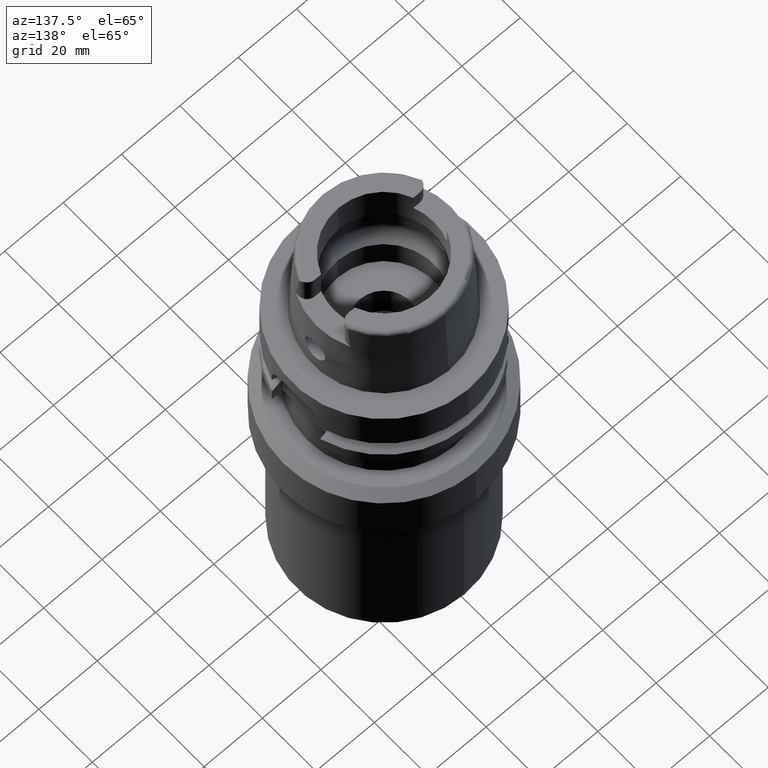
[diagram: clean part render]
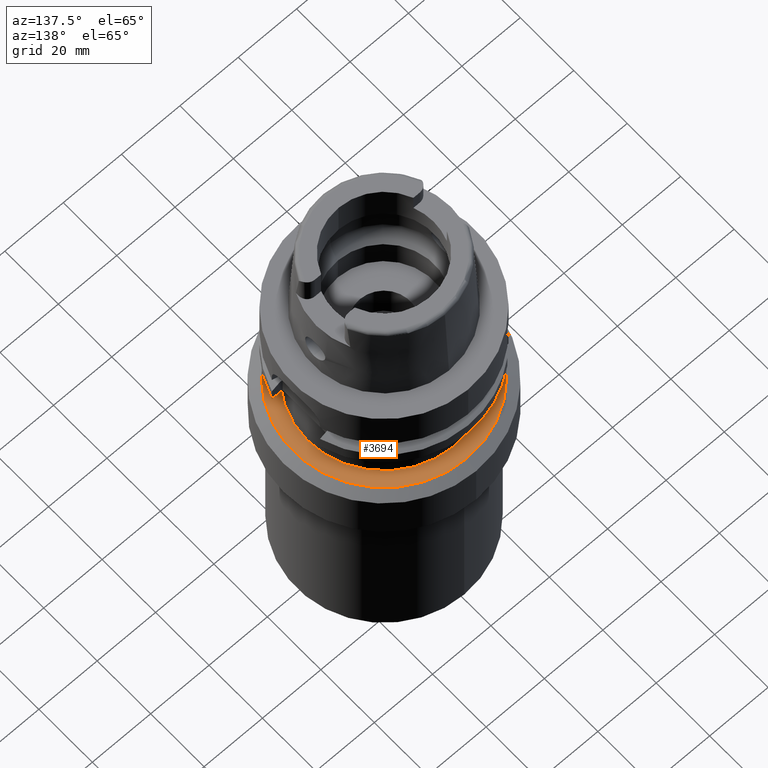
[diagram: same view with one face highlighted and labeled with its STEP entity id]
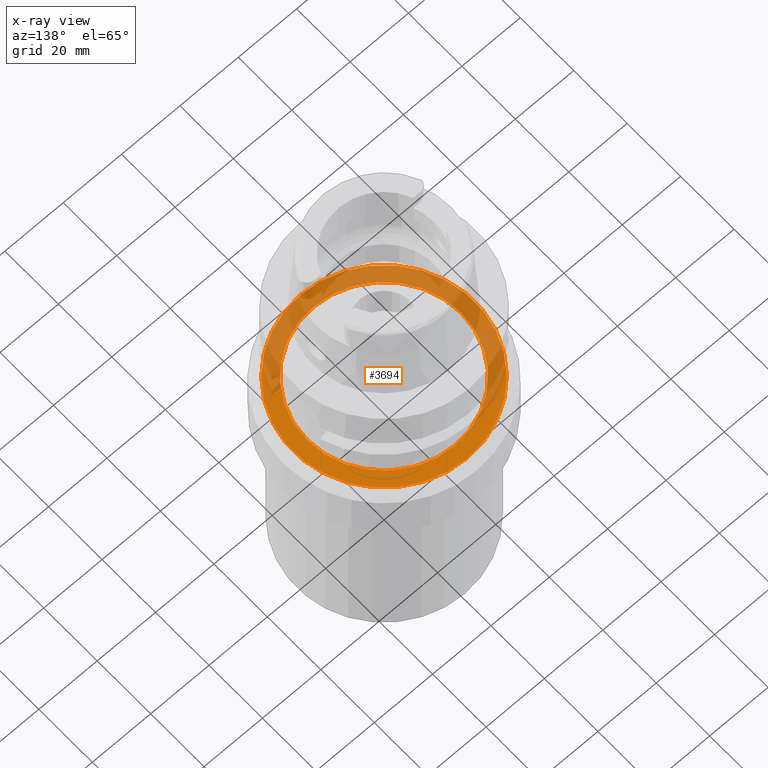
[diagram: x-ray of the same camera — body ghosted, the highlighted face saturated]
A machine part, auxiliary view. The second image highlights one B-rep face of the part: STEP entity #3694.
The next image is the same camera in x-ray: the body ghosted, the highlighted face saturated — about 55% of this face is hidden behind the body in this view.
In plain terms, the highlighted planar face has unit normal (0, 0, 1).
Its self-contained STEP definition (entity closure, byte-faithful):
#1627=CARTESIAN_POINT('',(0.E0,0.E0,-4.2E1));
#1628=DIRECTION('',(0.E0,0.E0,-1.E0));
#1629=DIRECTION('',(0.E0,-1.E0,0.E0));
#1630=AXIS2_PLACEMENT_3D('',#1627,#1628,#1629);
#1635=CARTESIAN_POINT('',(0.E0,0.E0,-4.2E1));
#1636=DIRECTION('',(0.E0,0.E0,-1.E0));
#1637=DIRECTION('',(0.E0,1.E0,0.E0));
#1638=AXIS2_PLACEMENT_3D('',#1635,#1636,#1637);
#1643=CARTESIAN_POINT('',(0.E0,0.E0,-4.2E1));
#1644=DIRECTION('',(0.E0,0.E0,1.E0));
#1645=DIRECTION('',(0.E0,-1.E0,0.E0));
#1646=AXIS2_PLACEMENT_3D('',#1643,#1644,#1645);
#1651=CARTESIAN_POINT('',(0.E0,0.E0,-4.2E1));
#1652=DIRECTION('',(0.E0,0.E0,1.E0));
#1653=DIRECTION('',(0.E0,1.E0,0.E0));
#1654=AXIS2_PLACEMENT_3D('',#1651,#1652,#1653);
#2442=CARTESIAN_POINT('',(0.E0,3.103589838486E1,-4.2E1));
#2443=VERTEX_POINT('',#2442);
#2444=CARTESIAN_POINT('',(0.E0,-3.103589838486E1,-4.2E1));
#2445=VERTEX_POINT('',#2444);
#2446=CARTESIAN_POINT('',(0.E0,-2.63E1,-4.2E1));
#2447=CARTESIAN_POINT('',(0.E0,2.63E1,-4.2E1));
#2448=VERTEX_POINT('',#2446);
#2449=VERTEX_POINT('',#2447);
#3679=CARTESIAN_POINT('',(0.E0,0.E0,-4.2E1));
#3680=DIRECTION('',(0.E0,0.E0,1.E0));
#3681=DIRECTION('',(0.E0,1.E0,0.E0));
#3682=AXIS2_PLACEMENT_3D('',#3679,#3680,#3681);
#3683=PLANE('',#3682);
#3685=ORIENTED_EDGE('',*,*,#3684,.T.);
#3687=ORIENTED_EDGE('',*,*,#3686,.T.);
#3688=EDGE_LOOP('',(#3685,#3687));
#3689=FACE_OUTER_BOUND('',#3688,.F.);
#3690=ORIENTED_EDGE('',*,*,#3672,.T.);
#3691=ORIENTED_EDGE('',*,*,#3661,.T.);
#3692=EDGE_LOOP('',(#3690,#3691));
#3693=FACE_BOUND('',#3692,.F.);
#1631=CIRCLE('',#1630,3.103589838486E1);
#1639=CIRCLE('',#1638,3.103589838486E1);
#1647=CIRCLE('',#1646,2.63E1);
#1655=CIRCLE('',#1654,2.63E1);
#3661=EDGE_CURVE('',#2449,#2448,#1655,.T.);
#3672=EDGE_CURVE('',#2448,#2449,#1647,.T.);
#3684=EDGE_CURVE('',#2445,#2443,#1631,.T.);
#3686=EDGE_CURVE('',#2443,#2445,#1639,.T.);
#3694=ADVANCED_FACE('',(#3689,#3693),#3683,.T.);